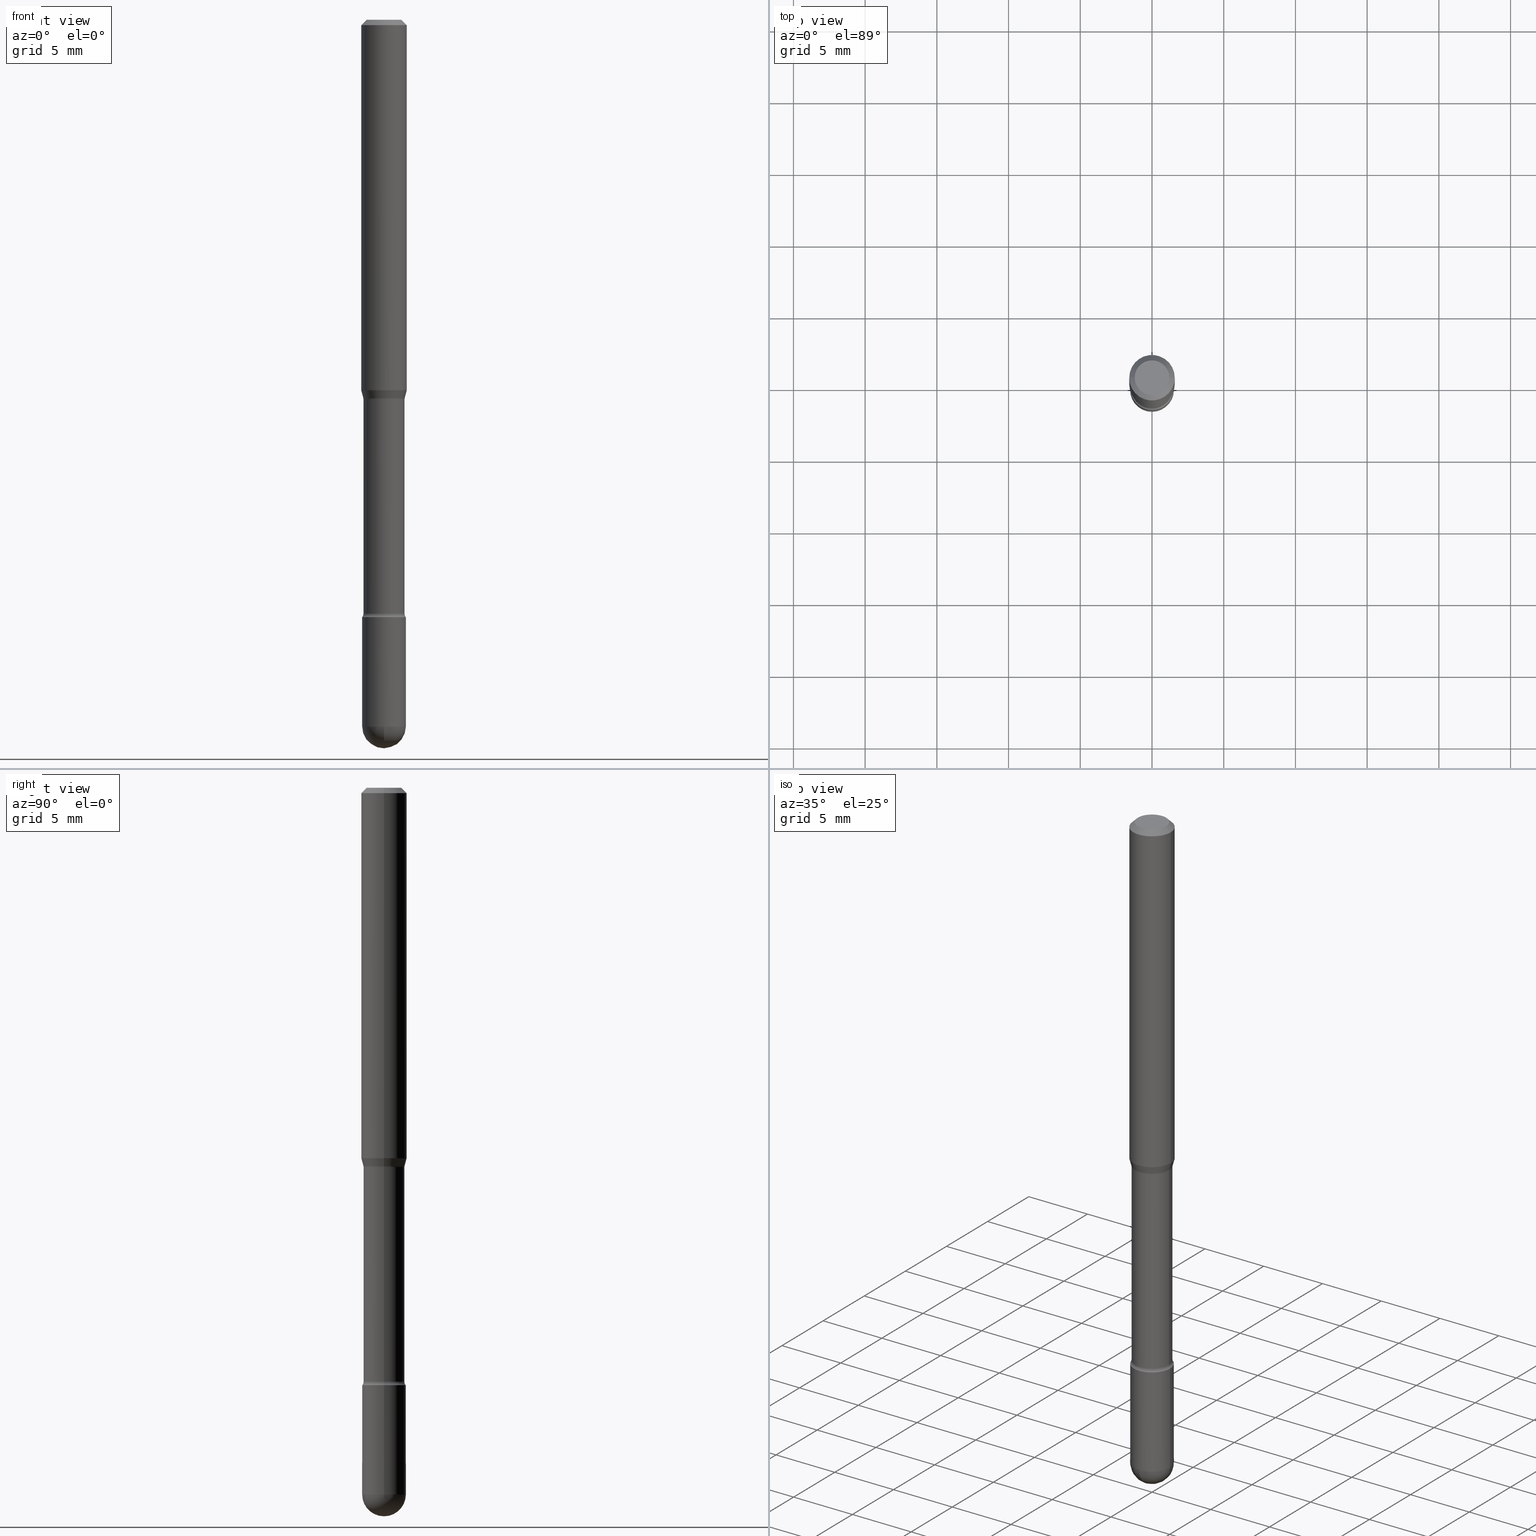
[diagram: canonical four-view strip — front | top / right | iso, engineering-drawing reading convention]
A machine part, canonical four-view strip (front | top / right | iso — engineering-drawing reading convention). The complete STEP part file that produces these views, byte-faithful:
ISO-10303-21;
HEADER;
FILE_DESCRIPTION (( 'STEP AP203' ),
    '1' );
FILE_NAME ('09351.STEP',
    '2024-04-09T22:47:27',
    ( '' ),
    ( '' ),
    'SwSTEP 2.0',
    'SolidWorks 2023',
    '' );
FILE_SCHEMA (( 'CONFIG_CONTROL_DESIGN' ));
ENDSEC;

DATA;
#1 = CARTESIAN_POINT ( 'NONE',  ( 0.06000000000000001166, -6.668729357190407112E-15, -1.940000000000000169 ) ) ;
#2 = EDGE_LOOP ( 'NONE', ( #114, #205, #415, #511, #37 ) ) ;
#3 = FACE_OUTER_BOUND ( 'NONE', #38, .T. ) ;
#4 = DIRECTION ( 'NONE',  ( 1.000000000000000000, -6.982962677686267499E-15, 4.839830652673567839E-29 ) ) ;
#5 = EDGE_CURVE ( 'NONE', #413, #464, #318, .T. ) ;
#6 = CARTESIAN_POINT ( 'NONE',  ( 3.986728343145078796E-29, -5.691991481519760406E-15, -1.630251153914436646 ) ) ;
#7 = LINE ( 'NONE', #372, #554 ) ;
#8 = DIRECTION ( 'NONE',  ( 1.000000000000000000, -6.982962677686265922E-15, 4.876176775795935793E-29 ) ) ;
#9 = AXIS2_PLACEMENT_3D ( 'NONE', #101, #285, #483 ) ;
#10 = ORGANIZATION ( 'UNSPECIFIED', 'UNSPECIFIED', '' ) ;
#11 = DIRECTION ( 'NONE',  ( 0.000000000000000000, 0.000000000000000000, 1.000000000000000000 ) ) ;
#12 = DIRECTION ( 'NONE',  ( 1.000000000000000000, -6.982962677686262766E-15, 0.000000000000000000 ) ) ;
#13 = CARTESIAN_POINT ( 'NONE',  ( -0.05691111260566398405, -3.163834425496899116E-15, -1.038092501787272859 ) ) ;
#14 = FACE_OUTER_BOUND ( 'NONE', #475, .T. ) ;
#15 = DIRECTION ( 'NONE',  ( -6.982962677686266711E-15, -1.000000000000000000, 3.491481338843145583E-15 ) ) ;
#16 = EDGE_CURVE ( 'NONE', #452, #464, #387, .T. ) ;
#17 = PLANE ( 'NONE',  #465 ) ;
#18 = MANIFOLD_SOLID_BREP ( 'Body-Move/Copy2[2]', #298 ) ;
#19 = SECURITY_CLASSIFICATION ( '', '', #157 ) ;
#20 = CARTESIAN_POINT ( 'NONE',  ( -0.04749999999999999362, 3.578768372314208041E-16, -8.274703207154778150E-17 ) ) ;
#21 = ORIENTED_EDGE ( 'NONE', *, *, #119, .F. ) ;
#22 = PERSON_AND_ORGANIZATION_ROLE ( 'creator' ) ;
#23 = ORIENTED_EDGE ( 'NONE', *, *, #164, .F. ) ;
#24 = ADVANCED_FACE ( 'NONE', ( #42 ), #347, .T. ) ;
#25 = CARTESIAN_POINT ( 'NONE',  ( -0.06000000000000001166, 4.263256414560601944E-16, -2.951361054152943763E-30 ) ) ;
#26 = ORIENTED_EDGE ( 'NONE', *, *, #233, .F. ) ;
#27 = CC_DESIGN_PERSON_AND_ORGANIZATION_ASSIGNMENT ( #334, #28, ( #19 ) ) ;
#28 = PERSON_AND_ORGANIZATION_ROLE ( 'classification_officer' ) ;
#29 = ORIENTED_EDGE ( 'NONE', *, *, #119, .T. ) ;
#30 = ORIENTED_EDGE ( 'NONE', *, *, #521, .F. ) ;
#31 = CARTESIAN_POINT ( 'NONE',  ( 4.744209483999165043E-29, -6.773473797355702848E-15, -1.940000000000000169 ) ) ;
#32 = EDGE_CURVE ( 'NONE', #417, #424, #139, .T. ) ;
#33 = CARTESIAN_POINT ( 'NONE',  ( 2.548116839574135909E-29, -3.638035525974947142E-15, -1.041974787463810559 ) ) ;
#34 = DIRECTION ( 'NONE',  ( -2.445468806185136877E-29, 3.491481338843145188E-15, 1.000000000000000000 ) ) ;
#35 = VECTOR ( 'NONE', #338, 39.37007874015748143 ) ;
#36 = CC_DESIGN_SECURITY_CLASSIFICATION ( #19, ( #404 ) ) ;
#37 = ORIENTED_EDGE ( 'NONE', *, *, #57, .F. ) ;
#38 = EDGE_LOOP ( 'NONE', ( #503, #163, #498, #310 ) ) ;
#39 = DIRECTION ( 'NONE',  ( -1.000000000000000000, 6.982962677686265922E-15, -4.883557194083112340E-29 ) ) ;
#40 = VERTEX_POINT ( 'NONE', #220 ) ;
#41 = EDGE_CURVE ( 'NONE', #181, #544, #425, .T. ) ;
#42 = FACE_OUTER_BOUND ( 'NONE', #2, .T. ) ;
#43 = CARTESIAN_POINT ( 'NONE',  ( -0.06250000000000000000, -3.107566029470336357E-15, -1.017234490073829489 ) ) ;
#44 = DIRECTION ( 'NONE',  ( -2.445468806185136597E-29, 3.491481338843145583E-15, 1.000000000000000000 ) ) ;
#45 = AXIS2_PLACEMENT_3D ( 'NONE', #366, #531, #46 ) ;
#46 = DIRECTION ( 'NONE',  ( 1.000000000000000000, -6.982962677686266711E-15, 4.852736867747366207E-29 ) ) ;
#47 = AXIS2_PLACEMENT_3D ( 'NONE', #266, #136, #133 ) ;
#48 = CARTESIAN_POINT ( 'NONE',  ( 4.010568842143624288E-29, -5.726029395702758897E-15, -1.639999999999999902 ) ) ;
#49 = CARTESIAN_POINT ( 'NONE',  ( -0.07140000000000007452, -5.184663968187048738E-15, -1.630251153914436868 ) ) ;
#50 = PERSON_AND_ORGANIZATION ( #263, #10 ) ;
#51 = FACE_OUTER_BOUND ( 'NONE', #303, .T. ) ;
#52 = APPLICATION_PROTOCOL_DEFINITION ( 'international standard', 'config_control_design', 1994, #125 ) ;
#53 = DIRECTION ( 'NONE',  ( 1.000000000000000000, -6.982962677686267499E-15, 4.884662768193073002E-29 ) ) ;
#54 = AXIS2_PLACEMENT_3D ( 'NONE', #216, #386, #169 ) ;
#55 = CC_DESIGN_PERSON_AND_ORGANIZATION_ASSIGNMENT ( #385, #299, ( #404 ) ) ;
#56 = PERSON_AND_ORGANIZATION_ROLE ( 'design_owner' ) ;
#57 = EDGE_CURVE ( 'NONE', #393, #206, #189, .T. ) ;
#58 = DIRECTION ( 'NONE',  ( 1.000000000000000000, -6.982962677686266711E-15, 4.852736867747366207E-29 ) ) ;
#59 = EDGE_LOOP ( 'NONE', ( #351, #174, #379, #461, #559 ) ) ;
#60 = CARTESIAN_POINT ( 'NONE',  ( 4.189777606612232751E-16, 0.05999999999999321154, -1.940000000000000391 ) ) ;
#61 = AXIS2_PLACEMENT_3D ( 'NONE', #271, #476, #519 ) ;
#62 = VECTOR ( 'NONE', #365, 39.37007874015748143 ) ;
#63 = APPROVAL_PERSON_ORGANIZATION ( #504, #128, #460 ) ;
#64 = EDGE_LOOP ( 'NONE', ( #252, #88, #390, #26 ) ) ;
#65 = DATE_AND_TIME ( #501, #297 ) ;
#66 = ORIENTED_EDGE ( 'NONE', *, *, #530, .F. ) ;
#67 = CARTESIAN_POINT ( 'NONE',  ( 0.07140000000000000513, -4.136619061161747494E-15, -1.041974787463810781 ) ) ;
#68 = DATE_AND_TIME ( #342, #250 ) ;
#69 = ORIENTED_EDGE ( 'NONE', *, *, #551, .F. ) ;
#70 = ORIENTED_EDGE ( 'NONE', *, *, #321, .F. ) ;
#71 = CIRCLE ( 'NONE', #240, 0.05691111260566398405 ) ;
#72 = DATE_TIME_ROLE ( 'classification_date' ) ;
#73 = CC_DESIGN_APPROVAL ( #273, ( #404 ) ) ;
#74 = EDGE_LOOP ( 'NONE', ( #21, #123, #213, #215 ) ) ;
#75 = EDGE_CURVE ( 'NONE', #417, #381, #239, .T. ) ;
#76 = ORIENTED_EDGE ( 'NONE', *, *, #260, .T. ) ;
#77 = CARTESIAN_POINT ( 'NONE',  ( 2.023552857353652888E-45, -2.889097183224559242E-31, -8.274703207154537794E-17 ) ) ;
#78 = DIRECTION ( 'NONE',  ( 1.000000000000000000, -6.982962677686263555E-15, 4.883557194083111780E-29 ) ) ;
#79 = ORIENTED_EDGE ( 'NONE', *, *, #233, .T. ) ;
#80 = AXIS2_PLACEMENT_3D ( 'NONE', #77, #166, #264 ) ;
#81 = CARTESIAN_POINT ( 'NONE',  ( -1.169113584055446105E-44, 1.669184350826100908E-30, 4.780733988912460139E-16 ) ) ;
#82 = VECTOR ( 'NONE', #323, 39.37007874015748143 ) ;
#83 =( GEOMETRIC_REPRESENTATION_CONTEXT ( 3 ) GLOBAL_UNCERTAINTY_ASSIGNED_CONTEXT ( ( #253 ) ) GLOBAL_UNIT_ASSIGNED_CONTEXT ( ( #244, #410, #368 ) ) REPRESENTATION_CONTEXT ( 'NONE', 'WORKASPACE' ) );
#84 = ORIENTED_EDGE ( 'NONE', *, *, #383, .T. ) ;
#85 = EDGE_CURVE ( 'NONE', #544, #181, #508, .T. ) ;
#86 = EDGE_LOOP ( 'NONE', ( #454, #294, #160, #129 ) ) ;
#87 = LINE ( 'NONE', #269, #309 ) ;
#88 = ORIENTED_EDGE ( 'NONE', *, *, #551, .T. ) ;
#89 = ADVANCED_FACE ( 'NONE', ( #438 ), #97, .F. ) ;
#90 = DIRECTION ( 'NONE',  ( -2.445468806185136597E-29, 3.491481338843145583E-15, 1.000000000000000000 ) ) ;
#91 = CARTESIAN_POINT ( 'NONE',  ( 4.010568842143624288E-29, -5.726029395702758897E-15, -1.639999999999999902 ) ) ;
#92 = DIRECTION ( 'NONE',  ( -2.445468806185136597E-29, 3.491481338843145583E-15, 1.000000000000000000 ) ) ;
#93 = DIRECTION ( 'NONE',  ( 1.000000000000000000, -6.982962677686268288E-15, 0.000000000000000000 ) ) ;
#94 = AXIS2_PLACEMENT_3D ( 'NONE', #67, #548, #161 ) ;
#95 = DIRECTION ( 'NONE',  ( 1.000000000000000000, -6.982962677686271444E-15, 0.000000000000000000 ) ) ;
#96 = LOCAL_TIME ( 18, 47, 27.00000000000000000, #243 ) ;
#97 = TOROIDAL_SURFACE ( 'NONE', #412, 0.07140000000000007452, 0.01500000000000002720 ) ;
#98 = ADVANCED_FACE ( 'NONE', ( #512 ), #186, .F. ) ;
#99 = DIRECTION ( 'NONE',  ( -0.7071067811865475727, 2.468850131082257455E-15, -0.7071067811865474617 ) ) ;
#100 = PERSON_AND_ORGANIZATION ( #263, #10 ) ;
#101 = CARTESIAN_POINT ( 'NONE',  ( 2.538622831055463727E-29, -3.624480597983258133E-15, -1.038092501787272859 ) ) ;
#102 = DIRECTION ( 'NONE',  ( -1.000000000000000000, 7.105427357600978193E-15, 0.000000000000000000 ) ) ;
#103 = PERSON_AND_ORGANIZATION_ROLE ( 'creator' ) ;
#104 = CC_DESIGN_PERSON_AND_ORGANIZATION_ASSIGNMENT ( #50, #103, ( #311 ) ) ;
#105 = AXIS2_PLACEMENT_3D ( 'NONE', #423, #432, #183 ) ;
#106 = CIRCLE ( 'NONE', #198, 0.05640000000000004732 ) ;
#107 = APPROVAL_STATUS ( 'not_yet_approved' ) ;
#108 = CARTESIAN_POINT ( 'NONE',  ( 0.06250000000000000000, -4.888073874380391431E-16, -0.01500000000000008271 ) ) ;
#109 = VERTEX_POINT ( 'NONE', #192 ) ;
#110 = ADVANCED_FACE ( 'NONE', ( #3 ), #137, .T. ) ;
#111 = AXIS2_PLACEMENT_3D ( 'NONE', #355, #90, #467 ) ;
#112 = TOROIDAL_SURFACE ( 'NONE', #149, 0.07140000000000000513, 0.01499999999999999424 ) ;
#113 = ADVANCED_BREP_SHAPE_REPRESENTATION ( '09351', ( #223, #18, #120 ), #83 ) ;
#114 = ORIENTED_EDGE ( 'NONE', *, *, #312, .F. ) ;
#115 = ORIENTED_EDGE ( 'NONE', *, *, #383, .F. ) ;
#116 = VERTEX_POINT ( 'NONE', #188 ) ;
#117 = ORIENTED_EDGE ( 'NONE', *, *, #32, .F. ) ;
#118 = AXIS2_PLACEMENT_3D ( 'NONE', #317, #277, #95 ) ;
#119 = EDGE_CURVE ( 'NONE', #413, #307, #144, .T. ) ;
#120 = AXIS2_PLACEMENT_3D ( 'NONE', #143, #11, #376 ) ;
#121 = DIRECTION ( 'NONE',  ( 1.000000000000000000, -6.982962677686268288E-15, 0.000000000000000000 ) ) ;
#122 = ORIENTED_EDGE ( 'NONE', *, *, #5, .T. ) ;
#123 = ORIENTED_EDGE ( 'NONE', *, *, #150, .T. ) ;
#124 = DIRECTION ( 'NONE',  ( 0.2588190451025191852, 1.565188264969639520E-15, 0.9659258262890687563 ) ) ;
#125 = APPLICATION_CONTEXT ( 'configuration controlled 3d designs of mechanical parts and assemblies' ) ;
#126 = CARTESIAN_POINT ( 'NONE',  ( 0.05691111260566398405, -4.021888773254210373E-15, -1.038092501787272859 ) ) ;
#127 = ADVANCED_FACE ( 'NONE', ( #185 ), #402, .T. ) ;
#128 = APPROVAL ( #259, 'UNSPECIFIED' ) ;
#129 = ORIENTED_EDGE ( 'NONE', *, *, #556, .T. ) ;
#130 = DIRECTION ( 'NONE',  ( -2.445468806185136597E-29, 3.491481338843145583E-15, 1.000000000000000000 ) ) ;
#131 = CIRCLE ( 'NONE', #94, 0.01499999999999999424 ) ;
#132 = DIRECTION ( 'NONE',  ( 1.000000000000000000, -6.982962677686269077E-15, 0.000000000000000000 ) ) ;
#133 = DIRECTION ( 'NONE',  ( 1.000000000000000000, -6.982962677686266711E-15, 0.000000000000000000 ) ) ;
#134 = DIRECTION ( 'NONE',  ( -2.445468806185136597E-29, 3.491481338843145583E-15, 1.000000000000000000 ) ) ;
#135 = CYLINDRICAL_SURFACE ( 'NONE', #380, 0.06000000000000001166 ) ;
#136 = DIRECTION ( 'NONE',  ( -2.445468806185136597E-29, 3.491481338843145583E-15, 1.000000000000000000 ) ) ;
#137 = CYLINDRICAL_SURFACE ( 'NONE', #45, 0.06250000000000000000 ) ;
#138 = DIRECTION ( 'NONE',  ( -2.445468806185136597E-29, 3.491481338843145583E-15, 1.000000000000000000 ) ) ;
#139 = CIRCLE ( 'NONE', #455, 0.05999999999999995615 ) ;
#140 = AXIS2_PLACEMENT_3D ( 'NONE', #433, #281, #485 ) ;
#141 = FACE_OUTER_BOUND ( 'NONE', #340, .T. ) ;
#142 = AXIS2_PLACEMENT_3D ( 'NONE', #314, #316, #93 ) ;
#143 = CARTESIAN_POINT ( 'NONE',  ( 0.000000000000000000, 0.000000000000000000, 0.000000000000000000 ) ) ;
#144 = LINE ( 'NONE', #439, #82 ) ;
#145 = APPROVAL_DATE_TIME ( #147, #209 ) ;
#146 = ADVANCED_FACE ( 'NONE', ( #51 ), #524, .T. ) ;
#147 = DATE_AND_TIME ( #444, #280 ) ;
#148 = CARTESIAN_POINT ( 'NONE',  ( 3.668203209277725232E-31, -5.237222008264747365E-17, -0.01500000000000008271 ) ) ;
#149 = AXIS2_PLACEMENT_3D ( 'NONE', #360, #563, #78 ) ;
#150 = EDGE_CURVE ( 'NONE', #413, #40, #159, .T. ) ;
#151 = DIRECTION ( 'NONE',  ( 1.000000000000000000, -6.982962677686271444E-15, 0.000000000000000000 ) ) ;
#152 = VERTEX_POINT ( 'NONE', #362 ) ;
#153 = LINE ( 'NONE', #453, #62 ) ;
#154 = ORIENTED_EDGE ( 'NONE', *, *, #481, .T. ) ;
#155 = ORIENTED_EDGE ( 'NONE', *, *, #16, .T. ) ;
#156 = FACE_OUTER_BOUND ( 'NONE', #458, .T. ) ;
#157 = SECURITY_CLASSIFICATION_LEVEL ( 'unclassified' ) ;
#158 = ORIENTED_EDGE ( 'NONE', *, *, #57, .T. ) ;
#159 = CIRCLE ( 'NONE', #9, 0.05691111260566398405 ) ;
#160 = ORIENTED_EDGE ( 'NONE', *, *, #329, .T. ) ;
#161 = DIRECTION ( 'NONE',  ( 1.000000000000000000, -6.982962677686270655E-15, 0.000000000000000000 ) ) ;
#162 = CC_DESIGN_PERSON_AND_ORGANIZATION_ASSIGNMENT ( #165, #22, ( #404 ) ) ;
#163 = ORIENTED_EDGE ( 'NONE', *, *, #462, .T. ) ;
#164 = EDGE_CURVE ( 'NONE', #152, #513, #354, .T. ) ;
#165 = PERSON_AND_ORGANIZATION ( #263, #10 ) ;
#166 = DIRECTION ( 'NONE',  ( -2.445468806185136597E-29, 3.491481338843145583E-15, 1.000000000000000000 ) ) ;
#167 = CARTESIAN_POINT ( 'NONE',  ( 4.010568842143624288E-29, -5.726029395702758897E-15, -1.639999999999999902 ) ) ;
#168 = ORIENTED_EDGE ( 'NONE', *, *, #556, .F. ) ;
#169 = DIRECTION ( 'NONE',  ( 1.000000000000000000, -6.982962677686266711E-15, 0.000000000000000000 ) ) ;
#170 = AXIS2_PLACEMENT_3D ( 'NONE', #235, #397, #8 ) ;
#171 = ADVANCED_FACE ( 'NONE', ( #436 ), #234, .T. ) ;
#172 = ORIENTED_EDGE ( 'NONE', *, *, #75, .T. ) ;
#173 = CARTESIAN_POINT ( 'NONE',  ( 0.05999999999999999778, -6.145007156363934742E-15, -1.639999999999999902 ) ) ;
#174 = ORIENTED_EDGE ( 'NONE', *, *, #312, .T. ) ;
#175 = PRODUCT ( '09351', '09351', '', ( #322 ) ) ;
#176 = DIRECTION ( 'NONE',  ( -2.445468806185136597E-29, 3.491481338843145583E-15, 1.000000000000000000 ) ) ;
#177 = DIRECTION ( 'NONE',  ( -1.000000000000000000, 6.982962677686265922E-15, -4.883557194083112340E-29 ) ) ;
#178 = CIRCLE ( 'NONE', #257, 0.01500000000000002720 ) ;
#179 = ORIENTED_EDGE ( 'NONE', *, *, #398, .F. ) ;
#180 = SPHERICAL_SURFACE ( 'NONE', #502, 0.05999999999999995615 ) ;
#181 = VERTEX_POINT ( 'NONE', #526 ) ;
#182 = LINE ( 'NONE', #384, #207 ) ;
#183 = DIRECTION ( 'NONE',  ( 1.000000000000000000, -6.982962677686266711E-15, 0.000000000000000000 ) ) ;
#184 = EDGE_LOOP ( 'NONE', ( #179, #23, #349, #84 ) ) ;
#185 = FACE_OUTER_BOUND ( 'NONE', #507, .T. ) ;
#186 = PLANE ( 'NONE',  #170 ) ;
#187 = SPHERICAL_SURFACE ( 'NONE', #232, 0.05999999999999995615 ) ;
#188 = CARTESIAN_POINT ( 'NONE',  ( -0.06000000000000001166, -5.823425955073170777E-15, -1.940000000000000169 ) ) ;
#189 = CIRCLE ( 'NONE', #401, 0.05999999999999999778 ) ;
#190 = CIRCLE ( 'NONE', #394, 0.06250000000000000000 ) ;
#191 = DIRECTION ( 'NONE',  ( -1.000000000000000000, 6.982962677686266711E-15, 0.000000000000000000 ) ) ;
#192 = CARTESIAN_POINT ( 'NONE',  ( -0.06250000000000000000, -1.357924519851460804E-15, -0.01500000000000008271 ) ) ;
#193 = CIRCLE ( 'NONE', #142, 0.05999999999999999778 ) ;
#194 = ADVANCED_FACE ( 'NONE', ( #141 ), #180, .T. ) ;
#195 = VERTEX_POINT ( 'NONE', #1 ) ;
#196 = CIRCLE ( 'NONE', #491, 0.06250000000000000000 ) ;
#197 = CARTESIAN_POINT ( 'NONE',  ( 3.316907271900976096E-16, 0.04749999999999999362, 3.181781981480094004E-17 ) ) ;
#198 = AXIS2_PLACEMENT_3D ( 'NONE', #6, #536, #151 ) ;
#199 = DIRECTION ( 'NONE',  ( -2.445468806185136597E-29, 3.491481338843145583E-15, 1.000000000000000000 ) ) ;
#200 = EDGE_LOOP ( 'NONE', ( #331, #293, #222, #155 ) ) ;
#201 = ORIENTED_EDGE ( 'NONE', *, *, #32, .T. ) ;
#202 = DIRECTION ( 'NONE',  ( -2.445468806185136597E-29, 3.491481338843145583E-15, 1.000000000000000000 ) ) ;
#203 = EDGE_CURVE ( 'NONE', #513, #464, #468, .T. ) ;
#204 = COORDINATED_UNIVERSAL_TIME_OFFSET ( 5, 0, .BEHIND. ) ;
#205 = ORIENTED_EDGE ( 'NONE', *, *, #407, .T. ) ;
#206 = VERTEX_POINT ( 'NONE', #173 ) ;
#207 = VECTOR ( 'NONE', #359, 39.37007874015748143 ) ;
#208 = CIRCLE ( 'NONE', #517, 0.05999999999999999778 ) ;
#209 = APPROVAL ( #540, 'UNSPECIFIED' ) ;
#210 = AXIS2_PLACEMENT_3D ( 'NONE', #533, #373, #487 ) ;
#211 = SHAPE_DEFINITION_REPRESENTATION ( #258, #113 ) ;
#212 = ADVANCED_FACE ( 'NONE', ( #225 ), #112, .F. ) ;
#213 = ORIENTED_EDGE ( 'NONE', *, *, #254, .T. ) ;
#214 = CARTESIAN_POINT ( 'NONE',  ( 3.668203209277725232E-31, -5.237222008264747365E-17, -0.01500000000000008271 ) ) ;
#215 = ORIENTED_EDGE ( 'NONE', *, *, #435, .F. ) ;
#216 = CARTESIAN_POINT ( 'NONE',  ( 4.744209483999165043E-29, -6.773473797355702848E-15, -1.940000000000000169 ) ) ;
#217 = DESIGN_CONTEXT ( 'detailed design', #125, 'design' ) ;
#218 = ADVANCED_FACE ( 'NONE', ( #352 ), #267, .T. ) ;
#219 = AXIS2_PLACEMENT_3D ( 'NONE', #447, #202, #286 ) ;
#220 = CARTESIAN_POINT ( 'NONE',  ( 0.05691111260566398405, -4.021888773254210373E-15, -1.038092501787272859 ) ) ;
#221 = DIRECTION ( 'NONE',  ( 1.000000000000000000, -6.982962677686269077E-15, 0.000000000000000000 ) ) ;
#222 = ORIENTED_EDGE ( 'NONE', *, *, #321, .T. ) ;
#223 = MANIFOLD_SOLID_BREP ( 'Body-Move/Copy2[1]', #552 ) ;
#224 = ORIENTED_EDGE ( 'NONE', *, *, #75, .F. ) ;
#225 = FACE_OUTER_BOUND ( 'NONE', #200, .T. ) ;
#226 = CARTESIAN_POINT ( 'NONE',  ( 4.744209483999165043E-29, -6.773473797355702848E-15, -1.940000000000000169 ) ) ;
#227 = LINE ( 'NONE', #25, #35 ) ;
#228 = DIRECTION ( 'NONE',  ( -2.445468806185136597E-29, 3.491481338843145583E-15, 1.000000000000000000 ) ) ;
#229 = ORIENTED_EDGE ( 'NONE', *, *, #254, .F. ) ;
#230 = AXIS2_PLACEMENT_3D ( 'NONE', #451, #500, #58 ) ;
#231 = DIRECTION ( 'NONE',  ( 1.000000000000000000, -6.982962677686262766E-15, 0.000000000000000000 ) ) ;
#232 = AXIS2_PLACEMENT_3D ( 'NONE', #226, #177, #515 ) ;
#233 = EDGE_CURVE ( 'NONE', #464, #452, #472, .T. ) ;
#234 = PLANE ( 'NONE',  #516 ) ;
#235 = CARTESIAN_POINT ( 'NONE',  ( 4.189777606612160768E-16, 0.05999999999999427319, -1.640000000000000346 ) ) ;
#236 = PERSON_AND_ORGANIZATION ( #263, #10 ) ;
#237 = EDGE_CURVE ( 'NONE', #424, #116, #426, .T. ) ;
#238 = APPROVAL_ROLE ( '' ) ;
#239 = CIRCLE ( 'NONE', #471, 0.05999999999999995615 ) ;
#240 = AXIS2_PLACEMENT_3D ( 'NONE', #308, #130, #395 ) ;
#241 = CARTESIAN_POINT ( 'NONE',  ( 0.07140000000000007452, -6.190575016706561547E-15, -1.630251153914436868 ) ) ;
#242 = CYLINDRICAL_SURFACE ( 'NONE', #230, 0.06250000000000000000 ) ;
#243 = COORDINATED_UNIVERSAL_TIME_OFFSET ( 5, 0, .BEHIND. ) ;
#244 =( CONVERSION_BASED_UNIT ( 'INCH', #283 ) LENGTH_UNIT ( ) NAMED_UNIT ( #367 ) );
#245 = FACE_OUTER_BOUND ( 'NONE', #251, .T. ) ;
#246 = PRODUCT_RELATED_PRODUCT_CATEGORY ( 'detail', '', ( #175 ) ) ;
#247 = ORIENTED_EDGE ( 'NONE', *, *, #237, .F. ) ;
#248 = AXIS2_PLACEMENT_3D ( 'NONE', #348, #564, #12 ) ;
#249 = EDGE_CURVE ( 'NONE', #358, #307, #190, .T. ) ;
#250 = LOCAL_TIME ( 18, 47, 27.00000000000000000, #341 ) ;
#251 = EDGE_LOOP ( 'NONE', ( #333, #313 ) ) ;
#252 = ORIENTED_EDGE ( 'NONE', *, *, #203, .F. ) ;
#253 = UNCERTAINTY_MEASURE_WITH_UNIT (LENGTH_MEASURE( 1.000000000000000082E-05 ), #244, 'distance_accuracy_value', 'NONE');
#254 = EDGE_CURVE ( 'NONE', #40, #358, #391, .T. ) ;
#255 = APPROVAL_DATE_TIME ( #68, #128 ) ;
#256 = VERTEX_POINT ( 'NONE', #350 ) ;
#257 = AXIS2_PLACEMENT_3D ( 'NONE', #49, #409, #102 ) ;
#258 = PRODUCT_DEFINITION_SHAPE ( 'NONE', 'NONE',  #311 ) ;
#259 = APPROVAL_STATUS ( 'not_yet_approved' ) ;
#260 = EDGE_CURVE ( 'NONE', #40, #413, #71, .T. ) ;
#261 = ORIENTED_EDGE ( 'NONE', *, *, #398, .T. ) ;
#262 = CARTESIAN_POINT ( 'NONE',  ( 4.744209483999165043E-29, -6.773473797355702848E-15, -1.940000000000000169 ) ) ;
#263 = PERSON ( 'UNSPECIFIED', 'UNSPECIFIED', 'UNSPECIFIED', ('UNSPECIFIED'), ('UNSPECIFIED'), ('UNSPECIFIED') ) ;
#264 = DIRECTION ( 'NONE',  ( 1.000000000000000000, -6.982962677686267499E-15, 4.884662768193073002E-29 ) ) ;
#265 = CARTESIAN_POINT ( 'NONE',  ( 2.538622831055463727E-29, -3.624480597983258133E-15, -1.038092501787272859 ) ) ;
#266 = CARTESIAN_POINT ( 'NONE',  ( 4.744209483999165043E-29, -6.773473797355702848E-15, -1.940000000000000169 ) ) ;
#267 = CONICAL_SURFACE ( 'NONE', #374, 0.05691111260566398405, 0.2617993877991477980 ) ;
#268 = CONICAL_SURFACE ( 'NONE', #210, 0.05691111260566398405, 0.2617993877991477980 ) ;
#269 = CARTESIAN_POINT ( 'NONE',  ( 0.06000000000000001166, -4.189777606611760914E-16, 2.925706065477562106E-30 ) ) ;
#270 = CARTESIAN_POINT ( 'NONE',  ( 2.548116839574136470E-29, -3.638035525974947931E-15, -1.041974787463810781 ) ) ;
#271 = CARTESIAN_POINT ( 'NONE',  ( -0.07140000000000000513, -3.130708012642236263E-15, -1.041974787463810781 ) ) ;
#272 = FACE_OUTER_BOUND ( 'NONE', #59, .T. ) ;
#273 = APPROVAL ( #107, 'UNSPECIFIED' ) ;
#274 = ADVANCED_FACE ( 'NONE', ( #470 ), #522, .T. ) ;
#275 = DIRECTION ( 'NONE',  ( -2.445468806185136597E-29, 3.491481338843145583E-15, 1.000000000000000000 ) ) ;
#276 = DIRECTION ( 'NONE',  ( 6.982962677686265922E-15, 1.000000000000000000, -4.553079989440442247E-15 ) ) ;
#277 = DIRECTION ( 'NONE',  ( -2.445468806185136597E-29, 3.491481338843145583E-15, 1.000000000000000000 ) ) ;
#278 = DIRECTION ( 'NONE',  ( 1.000000000000000000, -6.982962677686268288E-15, 0.000000000000000000 ) ) ;
#279 = VECTOR ( 'NONE', #369, 39.37007874015748143 ) ;
#280 = LOCAL_TIME ( 18, 47, 27.00000000000000000, #319 ) ;
#281 = DIRECTION ( 'NONE',  ( 2.445468806185136597E-29, -3.491481338843145583E-15, -1.000000000000000000 ) ) ;
#282 = DIRECTION ( 'NONE',  ( -2.445468806185136597E-29, 3.491481338843145583E-15, 1.000000000000000000 ) ) ;
#283 = LENGTH_MEASURE_WITH_UNIT ( LENGTH_MEASURE( 0.02539999999999999897 ), #324 );
#284 = EDGE_CURVE ( 'NONE', #195, #206, #87, .T. ) ;
#285 = DIRECTION ( 'NONE',  ( -2.445468806185136597E-29, 3.491481338843145583E-15, 1.000000000000000000 ) ) ;
#286 = DIRECTION ( 'NONE',  ( 1.000000000000000000, -6.982962677686266711E-15, 0.000000000000000000 ) ) ;
#287 = CIRCLE ( 'NONE', #416, 0.05999999999999999778 ) ;
#288 = DIRECTION ( 'NONE',  ( 1.000000000000000000, -6.982962677686255667E-15, 0.000000000000000000 ) ) ;
#289 = CC_DESIGN_APPROVAL ( #209, ( #311 ) ) ;
#290 = APPROVAL_ROLE ( '' ) ;
#291 = CARTESIAN_POINT ( 'NONE',  ( 3.668203209277725232E-31, -5.237222008264747365E-17, -0.01500000000000008271 ) ) ;
#292 = ADVANCED_FACE ( 'NONE', ( #272 ), #135, .T. ) ;
#293 = ORIENTED_EDGE ( 'NONE', *, *, #260, .F. ) ;
#294 = ORIENTED_EDGE ( 'NONE', *, *, #85, .F. ) ;
#295 = DIRECTION ( 'NONE',  ( -1.000000000000000000, 6.982962677686265922E-15, -4.876176775795935793E-29 ) ) ;
#296 = CIRCLE ( 'NONE', #54, 0.06000000000000001166 ) ;
#297 = LOCAL_TIME ( 18, 47, 27.00000000000000000, #339 ) ;
#298 = CLOSED_SHELL ( 'NONE', ( #489, #146, #539, #127, #110, #547, #218, #418, #469, #420, #98, #89, #274, #212 ) ) ;
#299 = PERSON_AND_ORGANIZATION_ROLE ( 'design_supplier' ) ;
#300 = ORIENTED_EDGE ( 'NONE', *, *, #329, .F. ) ;
#301 = EDGE_CURVE ( 'NONE', #195, #424, #296, .T. ) ;
#302 = EDGE_LOOP ( 'NONE', ( #377, #158 ) ) ;
#303 = EDGE_LOOP ( 'NONE', ( #306, #537, #558, #562 ) ) ;
#304 = AXIS2_PLACEMENT_3D ( 'NONE', #241, #15, #288 ) ;
#305 = DIRECTION ( 'NONE',  ( 1.000000000000000000, -6.982962677686265922E-15, 4.883557194083112340E-29 ) ) ;
#306 = ORIENTED_EDGE ( 'NONE', *, *, #164, .T. ) ;
#307 = VERTEX_POINT ( 'NONE', #43 ) ;
#308 = CARTESIAN_POINT ( 'NONE',  ( 2.538622831055463727E-29, -3.624480597983258133E-15, -1.038092501787272859 ) ) ;
#309 = VECTOR ( 'NONE', #553, 39.37007874015748143 ) ;
#310 = ORIENTED_EDGE ( 'NONE', *, *, #481, .F. ) ;
#311 = PRODUCT_DEFINITION ( 'UNKNOWN', '', #404, #217 ) ;
#312 = EDGE_CURVE ( 'NONE', #116, #393, #227, .T. ) ;
#313 = ORIENTED_EDGE ( 'NONE', *, *, #41, .T. ) ;
#314 = CARTESIAN_POINT ( 'NONE',  ( 4.010568842143624288E-29, -5.726029395702758897E-15, -1.639999999999999902 ) ) ;
#315 = ORIENTED_EDGE ( 'NONE', *, *, #407, .F. ) ;
#316 = DIRECTION ( 'NONE',  ( -2.445468806185136597E-29, 3.491481338843145583E-15, 1.000000000000000000 ) ) ;
#317 = CARTESIAN_POINT ( 'NONE',  ( 3.986728343145078796E-29, -5.691991481519760406E-15, -1.630251153914436646 ) ) ;
#318 = CIRCLE ( 'NONE', #61, 0.01499999999999999424 ) ;
#319 = COORDINATED_UNIVERSAL_TIME_OFFSET ( 5, 0, .BEHIND. ) ;
#320 = APPROVAL_PERSON_ORGANIZATION ( #492, #273, #290 ) ;
#321 = EDGE_CURVE ( 'NONE', #40, #452, #131, .T. ) ;
#322 = MECHANICAL_CONTEXT ( 'NONE', #480, 'mechanical' ) ;
#323 = DIRECTION ( 'NONE',  ( -0.2588190451025191852, 5.211531920934536842E-15, 0.9659258262890687563 ) ) ;
#324 =( LENGTH_UNIT ( ) NAMED_UNIT ( * ) SI_UNIT ( $, .METRE. ) );
#325 = DATE_TIME_ROLE ( 'creation_date' ) ;
#326 = AXIS2_PLACEMENT_3D ( 'NONE', #488, #440, #4 ) ;
#327 = AXIS2_PLACEMENT_3D ( 'NONE', #291, #403, #529 ) ;
#328 = DIRECTION ( 'NONE',  ( -1.000000000000000000, 7.105427357601001070E-15, -4.926315508542082329E-29 ) ) ;
#329 = EDGE_CURVE ( 'NONE', #544, #109, #463, .T. ) ;
#330 = CC_DESIGN_DATE_AND_TIME_ASSIGNMENT ( #65, #72, ( #19 ) ) ;
#331 = ORIENTED_EDGE ( 'NONE', *, *, #5, .F. ) ;
#332 = DIRECTION ( 'NONE',  ( 2.438088387897960049E-29, -3.491481338843145188E-15, -1.000000000000000000 ) ) ;
#333 = ORIENTED_EDGE ( 'NONE', *, *, #85, .T. ) ;
#334 = PERSON_AND_ORGANIZATION ( #263, #10 ) ;
#335 = VERTEX_POINT ( 'NONE', #419 ) ;
#336 = VECTOR ( 'NONE', #124, 39.37007874015748143 ) ;
#337 = AXIS2_PLACEMENT_3D ( 'NONE', #270, #228, #431 ) ;
#338 = DIRECTION ( 'NONE',  ( -2.445468806185136877E-29, 3.491481338843145188E-15, 1.000000000000000000 ) ) ;
#339 = COORDINATED_UNIVERSAL_TIME_OFFSET ( 5, 0, .BEHIND. ) ;
#340 = EDGE_LOOP ( 'NONE', ( #224, #201, #509, #30 ) ) ;
#341 = COORDINATED_UNIVERSAL_TIME_OFFSET ( 5, 0, .BEHIND. ) ;
#342 = CALENDAR_DATE ( 2024, 9, 4 ) ;
#343 = DIRECTION ( 'NONE',  ( -2.445468806185136597E-29, 3.491481338843145583E-15, 1.000000000000000000 ) ) ;
#344 = AXIS2_PLACEMENT_3D ( 'NONE', #514, #176, #221 ) ;
#345 = AXIS2_PLACEMENT_3D ( 'NONE', #493, #450, #53 ) ;
#346 = EDGE_CURVE ( 'NONE', #557, #109, #196, .T. ) ;
#347 = CYLINDRICAL_SURFACE ( 'NONE', #111, 0.06000000000000001166 ) ;
#348 = CARTESIAN_POINT ( 'NONE',  ( 2.487615214051194037E-29, -3.551655239320398973E-15, -1.017234490073829489 ) ) ;
#349 = ORIENTED_EDGE ( 'NONE', *, *, #442, .T. ) ;
#350 = CARTESIAN_POINT ( 'NONE',  ( -0.06000000000000001166, -5.299703754246698407E-15, -1.639999999999999902 ) ) ;
#351 = ORIENTED_EDGE ( 'NONE', *, *, #237, .T. ) ;
#352 = FACE_OUTER_BOUND ( 'NONE', #74, .T. ) ;
#353 = EDGE_CURVE ( 'NONE', #206, #393, #208, .T. ) ;
#354 = CIRCLE ( 'NONE', #118, 0.05640000000000004732 ) ;
#355 = CARTESIAN_POINT ( 'NONE',  ( 0.000000000000000000, 0.000000000000000000, 0.000000000000000000 ) ) ;
#356 = CARTESIAN_POINT ( 'NONE',  ( -0.05640000000000002650, 4.007461029686984188E-16, 4.780733988912432529E-16 ) ) ;
#357 = CARTESIAN_POINT ( 'NONE',  ( -0.05640000000000004732, -5.295474566398881529E-15, -1.630251153914436646 ) ) ;
#358 = VERTEX_POINT ( 'NONE', #437 ) ;
#359 = DIRECTION ( 'NONE',  ( 0.7071067811865475727, -7.319954787623256045E-15, -0.7071067811865474617 ) ) ;
#360 = CARTESIAN_POINT ( 'NONE',  ( 2.548116839574136470E-29, -3.638035525974947931E-15, -1.041974787463810781 ) ) ;
#361 = FACE_OUTER_BOUND ( 'NONE', #478, .T. ) ;
#362 = CARTESIAN_POINT ( 'NONE',  ( 0.05640000000000004732, -6.085830576541266600E-15, -1.630251153914436646 ) ) ;
#363 = DIRECTION ( 'NONE',  ( 1.000000000000000000, -6.982962677686265922E-15, 4.876176775795935793E-29 ) ) ;
#364 = VECTOR ( 'NONE', #34, 39.37007874015748143 ) ;
#365 = DIRECTION ( 'NONE',  ( -2.445468806185136877E-29, 3.491481338843145188E-15, 1.000000000000000000 ) ) ;
#366 = CARTESIAN_POINT ( 'NONE',  ( -1.169113584055446105E-44, 1.669184350826100908E-30, 4.780733988912460139E-16 ) ) ;
#367 = DIMENSIONAL_EXPONENTS ( 1.000000000000000000, 0.000000000000000000, 0.000000000000000000, 0.000000000000000000, 0.000000000000000000, 0.000000000000000000, 0.000000000000000000 ) ;
#368 =( NAMED_UNIT ( * ) SI_UNIT ( $, .STERADIAN. ) SOLID_ANGLE_UNIT ( ) );
#369 = DIRECTION ( 'NONE',  ( -2.445468806185136877E-29, 3.491481338843145188E-15, 1.000000000000000000 ) ) ;
#370 = CC_DESIGN_DATE_AND_TIME_ASSIGNMENT ( #371, #325, ( #311 ) ) ;
#371 = DATE_AND_TIME ( #406, #96 ) ;
#372 = CARTESIAN_POINT ( 'NONE',  ( -0.06250000000000000000, 4.440892098500642925E-16, 4.780733988912429571E-16 ) ) ;
#373 = DIRECTION ( 'NONE',  ( -2.445468806185136597E-29, 3.491481338843145583E-15, 1.000000000000000000 ) ) ;
#374 = AXIS2_PLACEMENT_3D ( 'NONE', #265, #520, #132 ) ;
#375 = ORIENTED_EDGE ( 'NONE', *, *, #378, .T. ) ;
#376 = DIRECTION ( 'NONE',  ( 1.000000000000000000, 0.000000000000000000, 0.000000000000000000 ) ) ;
#377 = ORIENTED_EDGE ( 'NONE', *, *, #353, .T. ) ;
#378 = EDGE_CURVE ( 'NONE', #181, #557, #182, .T. ) ;
#379 = ORIENTED_EDGE ( 'NONE', *, *, #353, .F. ) ;
#380 = AXIS2_PLACEMENT_3D ( 'NONE', #510, #92, #430 ) ;
#381 = VERTEX_POINT ( 'NONE', #479 ) ;
#382 = DIRECTION ( 'NONE',  ( 6.982962677686265922E-15, 1.000000000000000000, 0.000000000000000000 ) ) ;
#383 = EDGE_CURVE ( 'NONE', #335, #256, #287, .T. ) ;
#384 = CARTESIAN_POINT ( 'NONE',  ( 0.06250000000000000000, -4.811533449433681963E-16, -0.01500000000000008271 ) ) ;
#385 = PERSON_AND_ORGANIZATION ( #263, #10 ) ;
#386 = DIRECTION ( 'NONE',  ( -2.445468806185136597E-29, 3.491481338843145583E-15, 1.000000000000000000 ) ) ;
#387 = CIRCLE ( 'NONE', #427, 0.05640000000000000568 ) ;
#388 = CONICAL_SURFACE ( 'NONE', #456, 0.06250000000000000000, 0.7853981633974483900 ) ;
#389 = CIRCLE ( 'NONE', #47, 0.06000000000000001166 ) ;
#390 = ORIENTED_EDGE ( 'NONE', *, *, #448, .T. ) ;
#391 = LINE ( 'NONE', #126, #336 ) ;
#392 = EDGE_LOOP ( 'NONE', ( #115, #66 ) ) ;
#393 = VERTEX_POINT ( 'NONE', #434 ) ;
#394 = AXIS2_PLACEMENT_3D ( 'NONE', #560, #44, #231 ) ;
#395 = DIRECTION ( 'NONE',  ( 1.000000000000000000, -6.982962677686269077E-15, 0.000000000000000000 ) ) ;
#396 = DIRECTION ( 'NONE',  ( -2.438088387897960049E-29, 3.491481338843145188E-15, 1.000000000000000000 ) ) ;
#397 = DIRECTION ( 'NONE',  ( -2.438088387897960049E-29, 3.491481338843145188E-15, 1.000000000000000000 ) ) ;
#398 = EDGE_CURVE ( 'NONE', #513, #256, #178, .T. ) ;
#399 = DIRECTION ( 'NONE',  ( 1.000000000000000000, -6.982962677686265922E-15, 4.883557194083112901E-29 ) ) ;
#400 = FACE_OUTER_BOUND ( 'NONE', #86, .T. ) ;
#401 = AXIS2_PLACEMENT_3D ( 'NONE', #422, #343, #121 ) ;
#402 = CONICAL_SURFACE ( 'NONE', #140, 0.06250000000000000000, 0.7853981633974483900 ) ;
#403 = DIRECTION ( 'NONE',  ( -2.445468806185136597E-29, 3.491481338843145583E-15, 1.000000000000000000 ) ) ;
#404 = PRODUCT_DEFINITION_FORMATION_WITH_SPECIFIED_SOURCE ( 'ANY', '', #175, .NOT_KNOWN. ) ;
#405 = CC_DESIGN_PERSON_AND_ORGANIZATION_ASSIGNMENT ( #100, #56, ( #175 ) ) ;
#406 = CALENDAR_DATE ( 2024, 9, 4 ) ;
#407 = EDGE_CURVE ( 'NONE', #116, #381, #411, .T. ) ;
#408 = CARTESIAN_POINT ( 'NONE',  ( 3.986728343145079357E-29, -5.691991481519761195E-15, -1.630251153914436868 ) ) ;
#409 = DIRECTION ( 'NONE',  ( 7.105427357601001859E-15, 1.000000000000000000, -3.491481338843145583E-15 ) ) ;
#410 =( NAMED_UNIT ( * ) PLANE_ANGLE_UNIT ( ) SI_UNIT ( $, .RADIAN. ) );
#411 = CIRCLE ( 'NONE', #219, 0.06000000000000001166 ) ;
#412 = AXIS2_PLACEMENT_3D ( 'NONE', #532, #496, #421 ) ;
#413 = VERTEX_POINT ( 'NONE', #13 ) ;
#414 = EDGE_LOOP ( 'NONE', ( #117, #172, #315, #247 ) ) ;
#415 = ORIENTED_EDGE ( 'NONE', *, *, #521, .T. ) ;
#416 = AXIS2_PLACEMENT_3D ( 'NONE', #91, #282, #278 ) ;
#417 = VERTEX_POINT ( 'NONE', #542 ) ;
#418 = ADVANCED_FACE ( 'NONE', ( #156 ), #242, .T. ) ;
#419 = CARTESIAN_POINT ( 'NONE',  ( 0.06000000000000001166, -6.145007156363934742E-15, -1.639999999999999902 ) ) ;
#420 = ADVANCED_FACE ( 'NONE', ( #245 ), #17, .F. ) ;
#421 = DIRECTION ( 'NONE',  ( 1.000000000000000000, -6.982962677686265922E-15, 4.883557194083112901E-29 ) ) ;
#422 = CARTESIAN_POINT ( 'NONE',  ( 4.010568842143624288E-29, -5.726029395702758897E-15, -1.639999999999999902 ) ) ;
#423 = CARTESIAN_POINT ( 'NONE',  ( 4.744209483999165043E-29, -6.773473797355702848E-15, -1.940000000000000169 ) ) ;
#424 = VERTEX_POINT ( 'NONE', #60 ) ;
#425 = CIRCLE ( 'NONE', #80, 0.04749999999999999362 ) ;
#426 = CIRCLE ( 'NONE', #105, 0.06000000000000001166 ) ;
#427 = AXIS2_PLACEMENT_3D ( 'NONE', #33, #275, #429 ) ;
#428 = ORIENTED_EDGE ( 'NONE', *, *, #462, .F. ) ;
#429 = DIRECTION ( 'NONE',  ( 1.000000000000000000, -6.982962677686269077E-15, 0.000000000000000000 ) ) ;
#430 = DIRECTION ( 'NONE',  ( 1.000000000000000000, -6.982962677686266711E-15, 4.876176775795935793E-29 ) ) ;
#431 = DIRECTION ( 'NONE',  ( 1.000000000000000000, -6.982962677686263555E-15, 4.883557194083111780E-29 ) ) ;
#432 = DIRECTION ( 'NONE',  ( -2.445468806185136597E-29, 3.491481338843145583E-15, 1.000000000000000000 ) ) ;
#433 = CARTESIAN_POINT ( 'NONE',  ( 3.668203209277725232E-31, -5.237222008264747365E-17, -0.01500000000000008271 ) ) ;
#434 = CARTESIAN_POINT ( 'NONE',  ( -0.05999999999999999778, -5.823425955073170777E-15, -1.639999999999999902 ) ) ;
#435 = EDGE_CURVE ( 'NONE', #307, #358, #484, .T. ) ;
#436 = FACE_OUTER_BOUND ( 'NONE', #302, .T. ) ;
#437 = CARTESIAN_POINT ( 'NONE',  ( 0.06250000000000000000, -3.988090406675790248E-15, -1.017234490073829489 ) ) ;
#438 = FACE_OUTER_BOUND ( 'NONE', #184, .T. ) ;
#439 = CARTESIAN_POINT ( 'NONE',  ( -0.05691111260566398405, -3.220102821523462270E-15, -1.038092501787272859 ) ) ;
#440 = DIRECTION ( 'NONE',  ( -2.445468806185136597E-29, 3.491481338843145583E-15, 1.000000000000000000 ) ) ;
#441 = DIRECTION ( 'NONE',  ( -7.105427357601001070E-15, -1.000000000000000000, 0.000000000000000000 ) ) ;
#442 = EDGE_CURVE ( 'NONE', #152, #335, #535, .T. ) ;
#443 = VECTOR ( 'NONE', #99, 39.37007874015748143 ) ;
#444 = CALENDAR_DATE ( 2024, 9, 4 ) ;
#445 = CC_DESIGN_APPROVAL ( #128, ( #19 ) ) ;
#446 = CARTESIAN_POINT ( 'NONE',  ( 0.05640000000000000568, -4.031874620996453335E-15, -1.041974787463810559 ) ) ;
#447 = CARTESIAN_POINT ( 'NONE',  ( 4.744209483999165043E-29, -6.773473797355702848E-15, -1.940000000000000169 ) ) ;
#448 = EDGE_CURVE ( 'NONE', #152, #452, #499, .T. ) ;
#449 = FACE_OUTER_BOUND ( 'NONE', #473, .T. ) ;
#450 = DIRECTION ( 'NONE',  ( -2.445468806185136597E-29, 3.491481338843145583E-15, 1.000000000000000000 ) ) ;
#451 = CARTESIAN_POINT ( 'NONE',  ( -1.169113584055446105E-44, 1.669184350826100908E-30, 4.780733988912460139E-16 ) ) ;
#452 = VERTEX_POINT ( 'NONE', #446 ) ;
#453 = CARTESIAN_POINT ( 'NONE',  ( 0.06250000000000000000, -4.364351673553899931E-16, 4.780733988912490708E-16 ) ) ;
#454 = ORIENTED_EDGE ( 'NONE', *, *, #378, .F. ) ;
#455 = AXIS2_PLACEMENT_3D ( 'NONE', #31, #305, #382 ) ;
#456 = AXIS2_PLACEMENT_3D ( 'NONE', #148, #495, #191 ) ;
#457 = CARTESIAN_POINT ( 'NONE',  ( -0.05640000000000000568, -4.264267400778657623E-15, -1.041974787463810559 ) ) ;
#458 = EDGE_LOOP ( 'NONE', ( #428, #561, #154, #168 ) ) ;
#459 = ORIENTED_EDGE ( 'NONE', *, *, #249, .F. ) ;
#460 = APPROVAL_ROLE ( '' ) ;
#461 = ORIENTED_EDGE ( 'NONE', *, *, #284, .F. ) ;
#462 = EDGE_CURVE ( 'NONE', #307, #109, #7, .T. ) ;
#463 = LINE ( 'NONE', #486, #443 ) ;
#464 = VERTEX_POINT ( 'NONE', #457 ) ;
#465 = AXIS2_PLACEMENT_3D ( 'NONE', #197, #332, #295 ) ;
#466 = TOROIDAL_SURFACE ( 'NONE', #555, 0.07140000000000007452, 0.01500000000000002720 ) ;
#467 = DIRECTION ( 'NONE',  ( 1.000000000000000000, -6.982962677686266711E-15, 4.876176775795935793E-29 ) ) ;
#468 = LINE ( 'NONE', #356, #364 ) ;
#469 = ADVANCED_FACE ( 'NONE', ( #400 ), #388, .T. ) ;
#470 = FACE_OUTER_BOUND ( 'NONE', #64, .T. ) ;
#471 = AXIS2_PLACEMENT_3D ( 'NONE', #262, #328, #441 ) ;
#472 = CIRCLE ( 'NONE', #344, 0.05640000000000000568 ) ;
#473 = EDGE_LOOP ( 'NONE', ( #69, #261, #549, #546 ) ) ;
#474 = DIRECTION ( 'NONE',  ( -2.445468806185136597E-29, 3.491481338843145583E-15, 1.000000000000000000 ) ) ;
#475 = EDGE_LOOP ( 'NONE', ( #76, #29, #459, #229 ) ) ;
#476 = DIRECTION ( 'NONE',  ( 7.105427357601001859E-15, 1.000000000000000000, -3.491481338843145583E-15 ) ) ;
#477 = CARTESIAN_POINT ( 'NONE',  ( 4.744209483999165043E-29, -6.773473797355702848E-15, -1.940000000000000169 ) ) ;
#478 = EDGE_LOOP ( 'NONE', ( #541, #122, #79, #70 ) ) ;
#479 = CARTESIAN_POINT ( 'NONE',  ( -4.263256414560125176E-16, -0.06000000000000675626, -1.939999999999999725 ) ) ;
#480 = APPLICATION_CONTEXT ( 'configuration controlled 3d designs of mechanical parts and assemblies' ) ;
#481 = EDGE_CURVE ( 'NONE', #358, #557, #153, .T. ) ;
#482 = DIRECTION ( 'NONE',  ( 1.000000000000000000, -6.982962677686267499E-15, 4.839830652673567839E-29 ) ) ;
#483 = DIRECTION ( 'NONE',  ( 1.000000000000000000, -6.982962677686269077E-15, 0.000000000000000000 ) ) ;
#484 = CIRCLE ( 'NONE', #248, 0.06250000000000000000 ) ;
#485 = DIRECTION ( 'NONE',  ( -1.000000000000000000, 6.982962677686266711E-15, 0.000000000000000000 ) ) ;
#486 = CARTESIAN_POINT ( 'NONE',  ( -0.06250000000000000000, 3.840629472727441958E-16, -0.01500000000000008271 ) ) ;
#487 = DIRECTION ( 'NONE',  ( 1.000000000000000000, -6.982962677686269077E-15, 0.000000000000000000 ) ) ;
#488 = CARTESIAN_POINT ( 'NONE',  ( -1.169113584055446105E-44, 1.669184350826100908E-30, 4.780733988912460139E-16 ) ) ;
#489 = ADVANCED_FACE ( 'NONE', ( #361 ), #527, .F. ) ;
#490 = APPLICATION_PROTOCOL_DEFINITION ( 'international standard', 'config_control_design', 1994, #480 ) ;
#491 = AXIS2_PLACEMENT_3D ( 'NONE', #214, #134, #525 ) ;
#492 = PERSON_AND_ORGANIZATION ( #263, #10 ) ;
#493 = CARTESIAN_POINT ( 'NONE',  ( 2.023552857353652888E-45, -2.889097183224559242E-31, -8.274703207154537794E-17 ) ) ;
#494 = ORIENTED_EDGE ( 'NONE', *, *, #41, .F. ) ;
#495 = DIRECTION ( 'NONE',  ( 2.445468806185136597E-29, -3.491481338843145583E-15, -1.000000000000000000 ) ) ;
#496 = DIRECTION ( 'NONE',  ( -2.445468806185136597E-29, 3.491481338843145583E-15, 1.000000000000000000 ) ) ;
#497 = APPROVAL_DATE_TIME ( #543, #273 ) ;
#498 = ORIENTED_EDGE ( 'NONE', *, *, #346, .F. ) ;
#499 = LINE ( 'NONE', #538, #279 ) ;
#500 = DIRECTION ( 'NONE',  ( -2.445468806185136597E-29, 3.491481338843145583E-15, 1.000000000000000000 ) ) ;
#501 = CALENDAR_DATE ( 2024, 9, 4 ) ;
#502 = AXIS2_PLACEMENT_3D ( 'NONE', #477, #39, #276 ) ;
#503 = ORIENTED_EDGE ( 'NONE', *, *, #249, .T. ) ;
#504 = PERSON_AND_ORGANIZATION ( #263, #10 ) ;
#505 = ADVANCED_FACE ( 'NONE', ( #523 ), #187, .T. ) ;
#506 = ORIENTED_EDGE ( 'NONE', *, *, #346, .T. ) ;
#507 = EDGE_LOOP ( 'NONE', ( #494, #375, #506, #300 ) ) ;
#508 = CIRCLE ( 'NONE', #345, 0.04749999999999999362 ) ;
#509 = ORIENTED_EDGE ( 'NONE', *, *, #301, .F. ) ;
#510 = CARTESIAN_POINT ( 'NONE',  ( 0.000000000000000000, 0.000000000000000000, 0.000000000000000000 ) ) ;
#511 = ORIENTED_EDGE ( 'NONE', *, *, #284, .T. ) ;
#512 = FACE_OUTER_BOUND ( 'NONE', #392, .T. ) ;
#513 = VERTEX_POINT ( 'NONE', #357 ) ;
#514 = CARTESIAN_POINT ( 'NONE',  ( 2.548116839574135909E-29, -3.638035525974947142E-15, -1.041974787463810559 ) ) ;
#515 = DIRECTION ( 'NONE',  ( 6.982962677686265922E-15, 1.000000000000000000, -4.553079989440442247E-15 ) ) ;
#516 = AXIS2_PLACEMENT_3D ( 'NONE', #48, #396, #363 ) ;
#517 = AXIS2_PLACEMENT_3D ( 'NONE', #167, #138, #566 ) ;
#518 = LOCAL_TIME ( 18, 47, 27.00000000000000000, #204 ) ;
#519 = DIRECTION ( 'NONE',  ( -1.000000000000000000, 7.105427357600993970E-15, 0.000000000000000000 ) ) ;
#520 = DIRECTION ( 'NONE',  ( -2.445468806185136597E-29, 3.491481338843145583E-15, 1.000000000000000000 ) ) ;
#521 = EDGE_CURVE ( 'NONE', #381, #195, #389, .T. ) ;
#522 = CYLINDRICAL_SURFACE ( 'NONE', #545, 0.05640000000000002650 ) ;
#523 = FACE_OUTER_BOUND ( 'NONE', #414, .T. ) ;
#524 = CYLINDRICAL_SURFACE ( 'NONE', #326, 0.05640000000000002650 ) ;
#525 = DIRECTION ( 'NONE',  ( 1.000000000000000000, -6.982962677686266711E-15, 0.000000000000000000 ) ) ;
#526 = CARTESIAN_POINT ( 'NONE',  ( 0.04749999999999999362, -4.035134999187581581E-16, -8.274703207154280181E-17 ) ) ;
#527 = TOROIDAL_SURFACE ( 'NONE', #337, 0.07140000000000000513, 0.01499999999999999424 ) ;
#528 = APPROVAL_PERSON_ORGANIZATION ( #236, #209, #238 ) ;
#529 = DIRECTION ( 'NONE',  ( 1.000000000000000000, -6.982962677686266711E-15, 0.000000000000000000 ) ) ;
#530 = EDGE_CURVE ( 'NONE', #256, #335, #193, .T. ) ;
#531 = DIRECTION ( 'NONE',  ( -2.445468806185136597E-29, 3.491481338843145583E-15, 1.000000000000000000 ) ) ;
#532 = CARTESIAN_POINT ( 'NONE',  ( 3.986728343145079357E-29, -5.691991481519761195E-15, -1.630251153914436868 ) ) ;
#533 = CARTESIAN_POINT ( 'NONE',  ( 2.538622831055463727E-29, -3.624480597983258133E-15, -1.038092501787272859 ) ) ;
#534 = DIRECTION ( 'NONE',  ( -2.445468806185136877E-29, 3.491481338843145188E-15, 1.000000000000000000 ) ) ;
#535 = CIRCLE ( 'NONE', #304, 0.01500000000000002720 ) ;
#536 = DIRECTION ( 'NONE',  ( -2.445468806185136597E-29, 3.491481338843145583E-15, 1.000000000000000000 ) ) ;
#537 = ORIENTED_EDGE ( 'NONE', *, *, #203, .T. ) ;
#538 = CARTESIAN_POINT ( 'NONE',  ( 0.05640000000000002650, -3.938390950215039255E-16, 4.780733988912487749E-16 ) ) ;
#539 = ADVANCED_FACE ( 'NONE', ( #449 ), #466, .F. ) ;
#540 = APPROVAL_STATUS ( 'not_yet_approved' ) ;
#541 = ORIENTED_EDGE ( 'NONE', *, *, #150, .F. ) ;
#542 = CARTESIAN_POINT ( 'NONE',  ( 4.893503111237811359E-29, -6.979288737288849237E-15, -2.000000000000000000 ) ) ;
#543 = DATE_AND_TIME ( #550, #518 ) ;
#544 = VERTEX_POINT ( 'NONE', #20 ) ;
#545 = AXIS2_PLACEMENT_3D ( 'NONE', #81, #474, #482 ) ;
#546 = ORIENTED_EDGE ( 'NONE', *, *, #442, .F. ) ;
#547 = ADVANCED_FACE ( 'NONE', ( #14 ), #268, .T. ) ;
#548 = DIRECTION ( 'NONE',  ( -6.982962677686266711E-15, -1.000000000000000000, 3.491481338843145583E-15 ) ) ;
#549 = ORIENTED_EDGE ( 'NONE', *, *, #530, .T. ) ;
#550 = CALENDAR_DATE ( 2024, 9, 4 ) ;
#551 = EDGE_CURVE ( 'NONE', #513, #152, #106, .T. ) ;
#552 = CLOSED_SHELL ( 'NONE', ( #292, #505, #171, #194, #24 ) ) ;
#553 = DIRECTION ( 'NONE',  ( -2.445468806185136877E-29, 3.491481338843145188E-15, 1.000000000000000000 ) ) ;
#554 = VECTOR ( 'NONE', #534, 39.37007874015748143 ) ;
#555 = AXIS2_PLACEMENT_3D ( 'NONE', #408, #199, #399 ) ;
#556 = EDGE_CURVE ( 'NONE', #109, #557, #565, .T. ) ;
#557 = VERTEX_POINT ( 'NONE', #108 ) ;
#558 = ORIENTED_EDGE ( 'NONE', *, *, #16, .F. ) ;
#559 = ORIENTED_EDGE ( 'NONE', *, *, #301, .T. ) ;
#560 = CARTESIAN_POINT ( 'NONE',  ( 2.487615214051194037E-29, -3.551655239320398973E-15, -1.017234490073829489 ) ) ;
#561 = ORIENTED_EDGE ( 'NONE', *, *, #435, .T. ) ;
#562 = ORIENTED_EDGE ( 'NONE', *, *, #448, .F. ) ;
#563 = DIRECTION ( 'NONE',  ( -2.445468806185136597E-29, 3.491481338843145583E-15, 1.000000000000000000 ) ) ;
#564 = DIRECTION ( 'NONE',  ( -2.445468806185136597E-29, 3.491481338843145583E-15, 1.000000000000000000 ) ) ;
#565 = CIRCLE ( 'NONE', #327, 0.06250000000000000000 ) ;
#566 = DIRECTION ( 'NONE',  ( 1.000000000000000000, -6.982962677686268288E-15, 0.000000000000000000 ) ) ;
ENDSEC;
END-ISO-10303-21;
